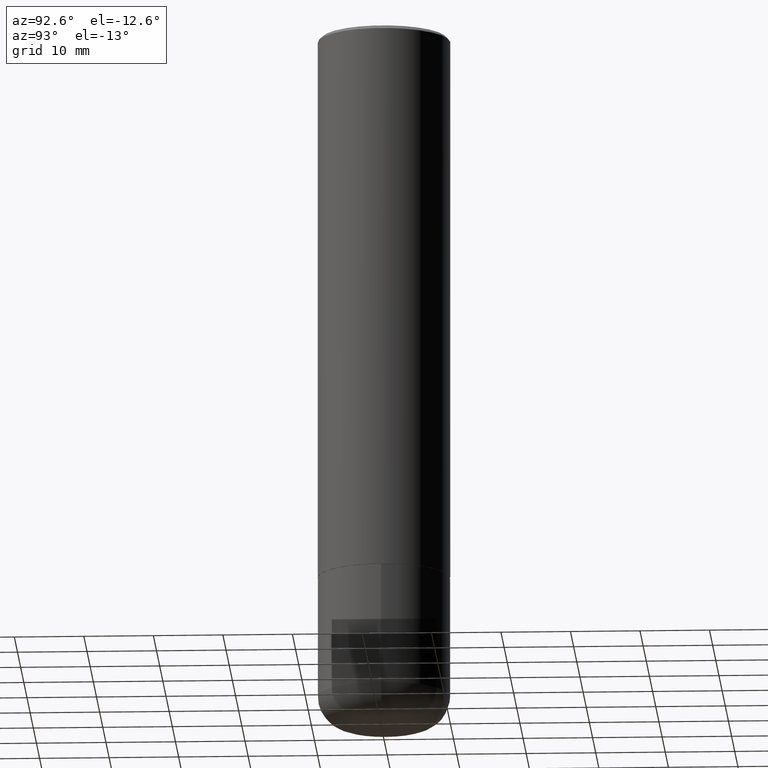
[diagram: clean part render]
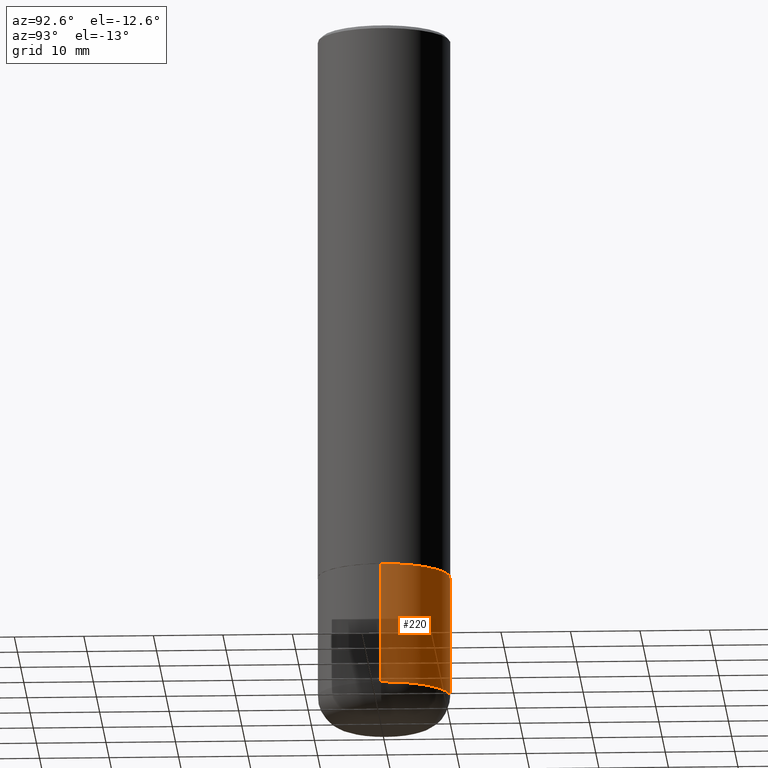
[diagram: same view with one face highlighted and labeled with its STEP entity id]
A machine part, auxiliary view. The second image highlights one B-rep face of the part: STEP entity #220.
In plain terms, the highlighted cylindrical surface (partial cylindrical patch) has radius 9.525 mm, axis along (-0, 0, 1).
Its self-contained STEP definition (entity closure, byte-faithful):
#1 = ORIENTED_EDGE ( 'NONE', *, *, #171, .F. ) ;
#6 = AXIS2_PLACEMENT_3D ( 'NONE', #102, #212, #210 ) ;
#29 = CARTESIAN_POINT ( 'NONE',  ( 0.000000000000000000, 0.000000000000000000, 0.000000000000000000 ) ) ;
#30 = CARTESIAN_POINT ( 'NONE',  ( 7.642090019328551865E-29, -1.091087918388483118E-14, -3.125000000000000000 ) ) ;
#38 = EDGE_LOOP ( 'NONE', ( #386, #246, #1, #181 ) ) ;
#63 = DIRECTION ( 'NONE',  ( -2.445468806185136877E-29, 3.491481338843145188E-15, 1.000000000000000000 ) ) ;
#67 = LINE ( 'NONE', #124, #183 ) ;
#96 = VERTEX_POINT ( 'NONE', #115 ) ;
#102 = CARTESIAN_POINT ( 'NONE',  ( 9.317236151565370389E-29, -1.330254390099238573E-14, -3.810000000000000053 ) ) ;
#115 = CARTESIAN_POINT ( 'NONE',  ( 0.3750000000000000555, -1.592115490512473417E-14, -3.810000000000000053 ) ) ;
#124 = CARTESIAN_POINT ( 'NONE',  ( 0.3750000000000001110, -2.618611004132350411E-15, 1.828566290923476483E-29 ) ) ;
#128 = AXIS2_PLACEMENT_3D ( 'NONE', #29, #282, #154 ) ;
#137 = VERTEX_POINT ( 'NONE', #177 ) ;
#147 = CARTESIAN_POINT ( 'NONE',  ( -0.3750000000000000555, -1.063800864189200846E-14, -3.810000000000000053 ) ) ;
#151 = FACE_OUTER_BOUND ( 'NONE', #38, .T. ) ;
#154 = DIRECTION ( 'NONE',  ( 1.000000000000000000, -6.982962677686265922E-15, 4.876176775795935793E-29 ) ) ;
#157 = DIRECTION ( 'NONE',  ( -2.445468806185136597E-29, 3.491481338843145583E-15, 1.000000000000000000 ) ) ;
#171 = EDGE_CURVE ( 'NONE', #137, #234, #403, .T. ) ;
#177 = CARTESIAN_POINT ( 'NONE',  ( 0.3750000000000000555, -1.352949018801718119E-14, -3.125000000000000000 ) ) ;
#181 = ORIENTED_EDGE ( 'NONE', *, *, #194, .F. ) ;
#183 = VECTOR ( 'NONE', #63, 39.37007874015748143 ) ;
#194 = EDGE_CURVE ( 'NONE', #96, #137, #67, .T. ) ;
#195 = DIRECTION ( 'NONE',  ( -2.445468806185136877E-29, 3.491481338843145188E-15, 1.000000000000000000 ) ) ;
#210 = DIRECTION ( 'NONE',  ( 1.000000000000000000, -6.982962677686265922E-15, 0.000000000000000000 ) ) ;
#212 = DIRECTION ( 'NONE',  ( -2.445468806185136597E-29, 3.491481338843145583E-15, 1.000000000000000000 ) ) ;
#213 = VERTEX_POINT ( 'NONE', #147 ) ;
#220 = ADVANCED_FACE ( 'NONE', ( #151 ), #245, .T. ) ;
#234 = VERTEX_POINT ( 'NONE', #318 ) ;
#245 = CYLINDRICAL_SURFACE ( 'NONE', #128, 0.3750000000000001110 ) ;
#246 = ORIENTED_EDGE ( 'NONE', *, *, #334, .T. ) ;
#248 = EDGE_CURVE ( 'NONE', #96, #213, #366, .T. ) ;
#277 = DIRECTION ( 'NONE',  ( 1.000000000000000000, -6.982962677686266711E-15, 0.000000000000000000 ) ) ;
#282 = DIRECTION ( 'NONE',  ( -2.445468806185136597E-29, 3.491481338843145583E-15, 1.000000000000000000 ) ) ;
#293 = CARTESIAN_POINT ( 'NONE',  ( -0.3750000000000001110, 2.664535259100376486E-15, -1.844600658845590159E-29 ) ) ;
#317 = VECTOR ( 'NONE', #195, 39.37007874015748143 ) ;
#318 = CARTESIAN_POINT ( 'NONE',  ( -0.3750000000000000555, -9.442176283338231969E-15, -3.125000000000000000 ) ) ;
#329 = LINE ( 'NONE', #293, #317 ) ;
#334 = EDGE_CURVE ( 'NONE', #213, #234, #329, .T. ) ;
#359 = AXIS2_PLACEMENT_3D ( 'NONE', #30, #157, #277 ) ;
#366 = CIRCLE ( 'NONE', #6, 0.3750000000000001110 ) ;
#386 = ORIENTED_EDGE ( 'NONE', *, *, #248, .T. ) ;
#403 = CIRCLE ( 'NONE', #359, 0.3750000000000000555 ) ;